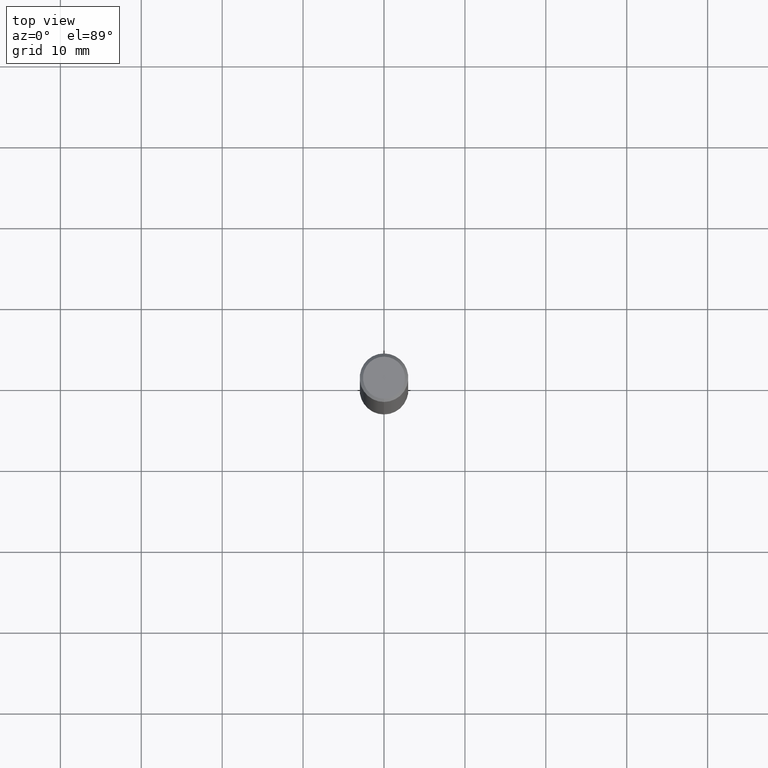
[diagram: clean part render]
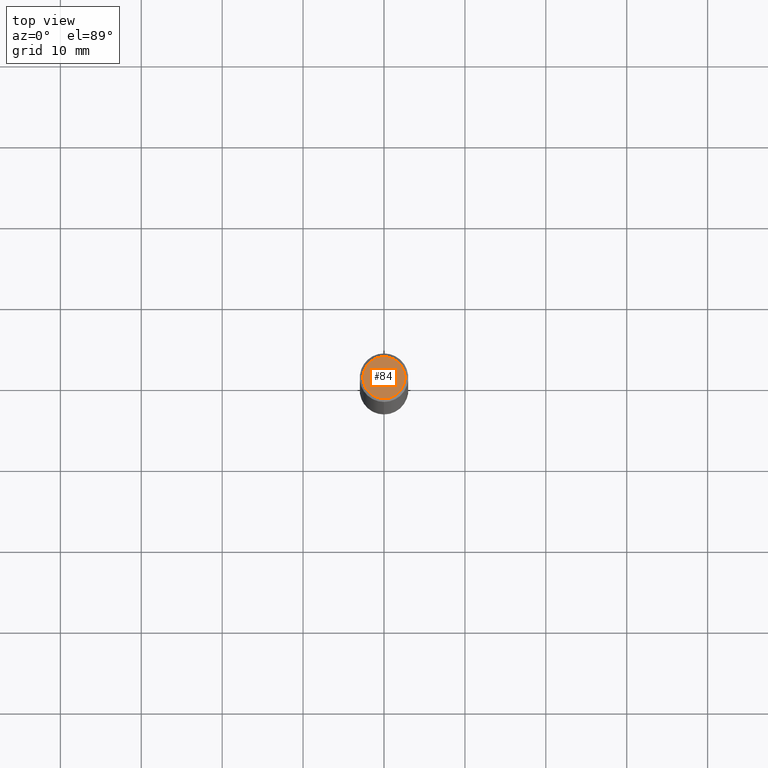
[diagram: same view with one face highlighted and labeled with its STEP entity id]
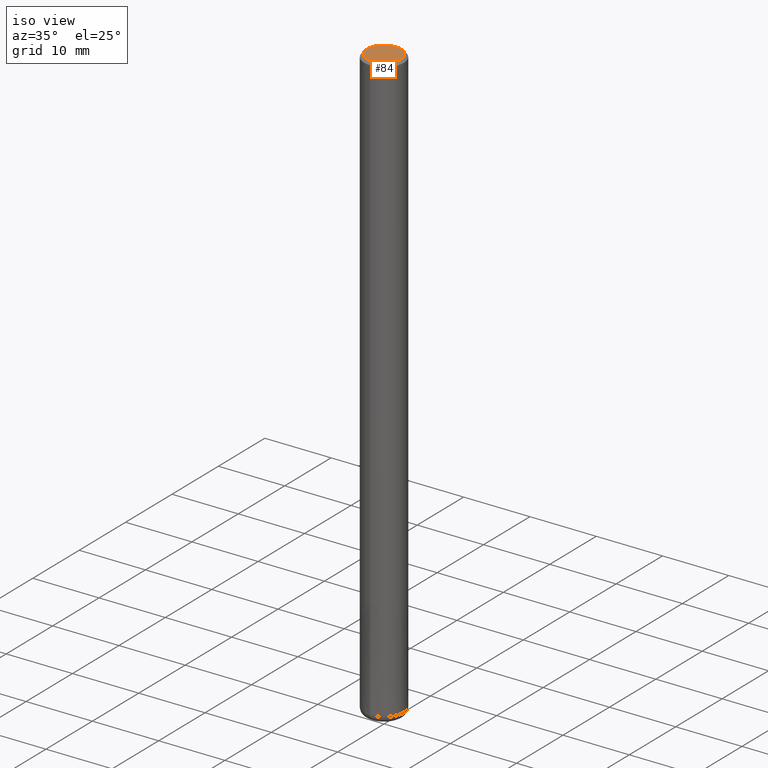
[diagram: same view with one face highlighted and labeled with its STEP entity id]
A machine part, top view. The second image highlights one B-rep face of the part: STEP entity #84.
A second angle (iso view) of the same face is appended — the face is thin or edge-on in the first view.
In plain terms, the highlighted planar face has unit normal (-0, 0, 1).
Its self-contained STEP definition (entity closure, byte-faithful):
#84=ADVANCED_FACE('',(#189),#190,.T.);
#98=EDGE_CURVE('',#104,#110,#205,.T.);
#104=VERTEX_POINT('',#213);
#110=VERTEX_POINT('',#219);
#112=EDGE_CURVE('',#110,#104,#221,.T.);
#189=FACE_OUTER_BOUND('',#296,.T.);
#190=PLANE('',#297);
#205=CIRCLE('',#319,2.6);
#213=CARTESIAN_POINT('',(0.0,2.6,0.0));
#219=CARTESIAN_POINT('',(3.18397651993818E-016,-2.6,0.0));
#221=CIRCLE('',#337,2.6);
#296=EDGE_LOOP('',(#414,#415));
#297=AXIS2_PLACEMENT_3D('',#416,#417,#418);
#319=AXIS2_PLACEMENT_3D('',#433,#434,#435);
#337=AXIS2_PLACEMENT_3D('',#455,#456,#457);
#414=ORIENTED_EDGE('',*,*,#98,.F.);
#415=ORIENTED_EDGE('',*,*,#112,.F.);
#416=CARTESIAN_POINT('',(0.0,1.3,0.0));
#417=DIRECTION('',(-0.0,0.0,1.0));
#418=DIRECTION('',(0.0,-1.0,0.0));
#433=CARTESIAN_POINT('',(0.0,0.0,0.0));
#434=DIRECTION('',(0.0,0.0,-1.0));
#435=DIRECTION('',(0.0,1.0,0.0));
#455=CARTESIAN_POINT('',(0.0,0.0,0.0));
#456=DIRECTION('',(0.0,0.0,-1.0));
#457=DIRECTION('',(0.0,1.0,0.0));